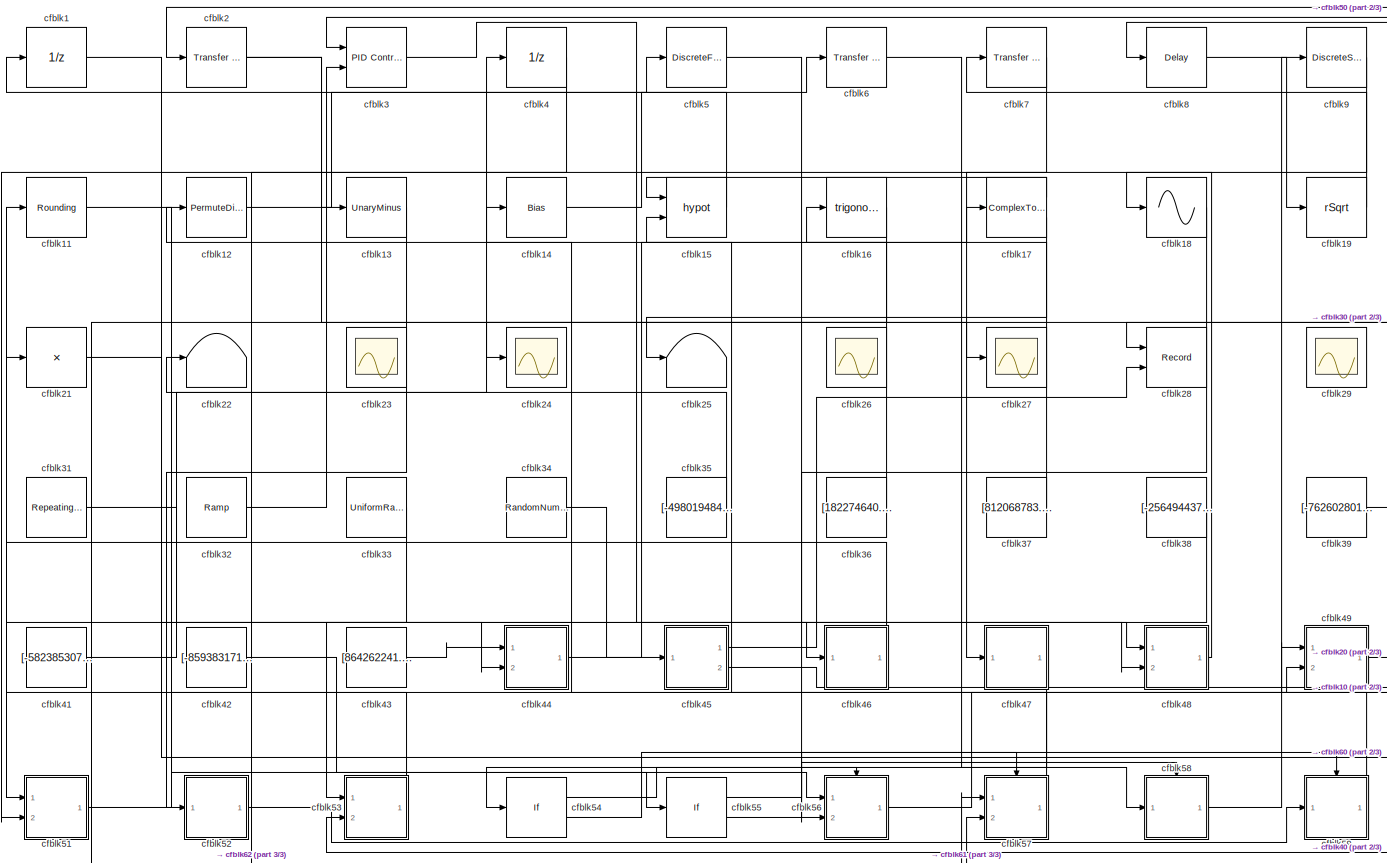
[diagram: root canvas - part 1/3, most of the canvas]
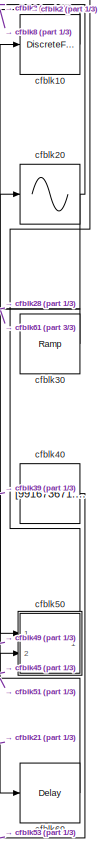
[diagram: root canvas - part 2/3, right side, full height]
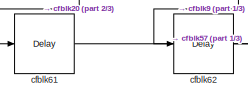
[diagram: root canvas - part 3/3, bottom left region]
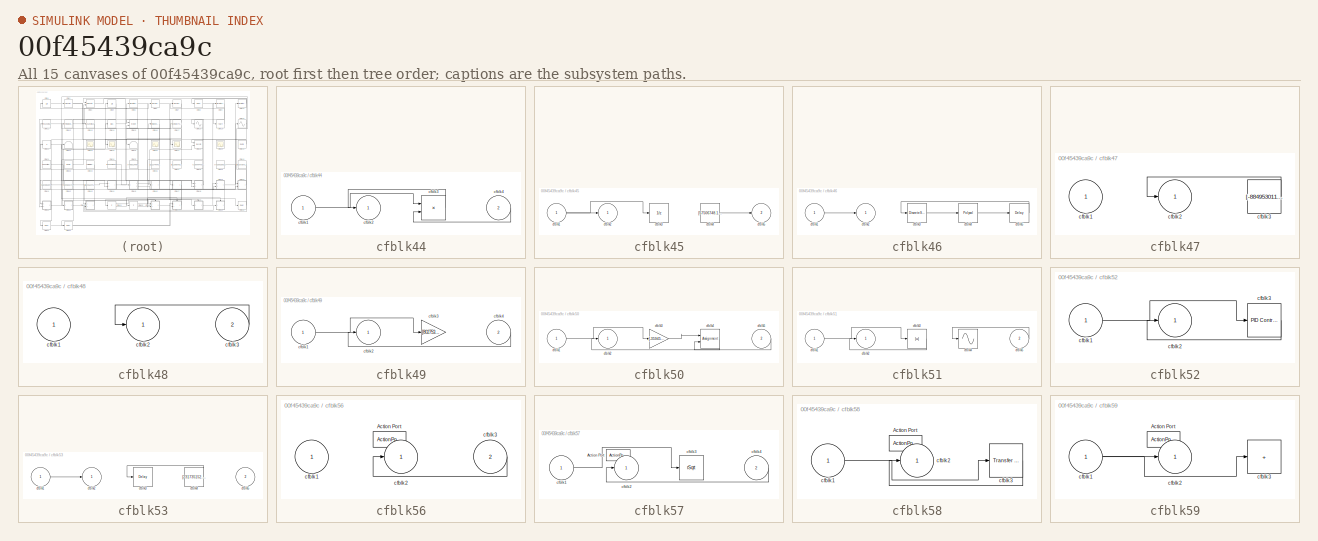
[diagram: thumbnail index - all 15 canvases of the model, root first then tree order]
MODEL slx_00f45439ca9c
KIND model
CONFIG AbsTol = auto
CONFIG EnableMultiTasking = off
CONFIG FixedStep = auto
CONFIG MaxStep = auto
CONFIG MinStep = auto
CONFIG RelTol = 1e-3
CONFIG SampleTimeConstraint = Unconstrained
CONFIG SolverName = VariableStepAuto
CONFIG StartTime = 0.0
CONFIG StopTime = 10.0
BLOCK [UnitDelay] cfblk1
  HasFrameUpgradeWarning = on
BLOCK [DiscreteFilter] cfblk10
  InputPortMap = u0
  Ports = [1, 1]
  SampleTime = 1
BLOCK [Rounding] cfblk11
BLOCK [PermuteDimensions] cfblk12
BLOCK [UnaryMinus] cfblk13
BLOCK [Bias] cfblk14
  Bias = [232730928.681070]
  SaturateOnIntegerOverflow = off
BLOCK [Math] cfblk15
  Operator = hypot
  Ports = [2, 1]
BLOCK [Trigonometry] cfblk16
  Ports = [1, 1]
BLOCK [ComplexToRealImag] cfblk17
  Ports = [1, 2]
BLOCK [Sin] cfblk18
  Ports = [1, 1]
  SampleTime = 0
  TimeSource = Use external signal
BLOCK [Sqrt] cfblk19
  AlgorithmType = Newton-Raphson
  Operator = rSqrt
BLOCK [Reference] cfblk2  REF=simulink/Discrete/Transfer Fcn
First Order
  Ports = [1, 1]
  SourceBlock = simulink/Discrete/Transfer Fcn\nFirst Order
  SourceProductBaseCode = SL
  SourceType = First Order Transfer Fcn
BLOCK [Sin] cfblk20
  Ports = [1, 1]
  SampleTime = 0
  TimeSource = Use external signal
BLOCK [Product] cfblk21
  Inputs = *
  Ports = [1, 1]
BLOCK [Terminator] cfblk22
BLOCK [Scope] cfblk23
  Floating = on
  NumInputPorts = 1
  Ports = []
BLOCK [Scope] cfblk24
  Floating = off
  NumInputPorts = 1
  Ports = [1]
BLOCK [Terminator] cfblk25
BLOCK [Scope] cfblk26
  Floating = on
  NumInputPorts = 1
  Ports = []
BLOCK [Scope] cfblk27
  Floating = off
  NumInputPorts = 1
  Ports = [1]
BLOCK [Record] cfblk28
  CompatibilityTag = XY
  FileSettingsInternal = {"entries":[{"content":{"excelSettings":{"content":{},"type":"Streamout.ExcelSettings"}},"type":"Streamout.FileSettingStorage","uuid":"bc1bea57-7175-457e-a136-c385bfcfe488"}],"packageUris":["http://schema.mathworks.com/mf0/streamout_blocks/R2020a"],"version":"1.0"}
  Layout = [1 1]
  Ports = [2]
  SignalsInternal = {"entries":[{"content":{"signals":[{"content":{"blockPath":["sampleModel193/cfblk28"],"channel":[],"dimensions":[1],"domain":"sampleModel193/cfblk28","lineColor":"#a2142f","plots":[1],"port":1,"sid":[""],"signalID":7218,"signalName":"cfblk30"},"type":"RecordBlkView.Signal","uuid":"5325866a-24c1-4f14-81bb-e80c3d8cfcb1"},{"content":{"blockPath":["sampleModel193/cfblk28"],"channel":[],"dimensions":[1...<+385ch>
  VisualizationBindings = {"xyplotplugin":{"info":[{"series":[{"bindingParametersList":[{"parameter":"X-Axis","signalID":7218,"signalName":"cfblk30"},{"parameter":"Y-Axis","signalID":7222,"signalName":"cfblk45:1"}],"seriesID":58629}],"subplotID":1}]}}
BLOCK [Scope] cfblk29
  Floating = on
  NumInputPorts = 1
  Ports = []
BLOCK [Reference] cfblk3  REF=slpidlib/PID Controller (2DOF)
  Ports = [2, 1]
  SourceBlock = slpidlib/PID Controller (2DOF)
  SourceProductBaseCode = SL
  SourceType = PID 2dof
BLOCK [Reference] cfblk30  REF=simulink/Sources/Ramp
  Ports = [0, 1]
  SourceBlock = simulink/Sources/Ramp
  SourceProductBaseCode = SL
  SourceType = Ramp
BLOCK [Reference] cfblk31  REF=simulink/Sources/Repeating
Sequence
Stair
  Ports = [0, 1]
  SourceBlock = simulink/Sources/Repeating\nSequence\nStair
  SourceProductBaseCode = SL
  SourceType = Repeating Sequence Stair
BLOCK [Reference] cfblk32  REF=simulink/Sources/Ramp
  Ports = [0, 1]
  SourceBlock = simulink/Sources/Ramp
  SourceProductBaseCode = SL
  SourceType = Ramp
BLOCK [UniformRandomNumber] cfblk33
  Maximum = [1760766452.681617]
  Minimum = [-942132288.166952]
  SampleTime = 0.1
  Seed = [86964386.000000]
BLOCK [RandomNumber] cfblk34
  Mean = [43865.707237]
  SampleTime = 0.1
  Seed = [951810309.000000]
  Variance = [65444.635651]
BLOCK [Constant] cfblk35
  SampleTime = 1
  Value = [-498019484.916280]
BLOCK [Constant] cfblk36
  SampleTime = 1
  Value = [182274640.164447]
BLOCK [Constant] cfblk37
  SampleTime = 1
  Value = [812068783.380337]
BLOCK [Constant] cfblk38
  SampleTime = 1
  Value = [-256494437.485965]
BLOCK [Constant] cfblk39
  SampleTime = 1
  Value = [-762602801.261265]
BLOCK [UnitDelay] cfblk4
  HasFrameUpgradeWarning = on
BLOCK [Constant] cfblk40
  SampleTime = 1
  Value = [991673671.101249]
BLOCK [Constant] cfblk41
  SampleTime = 1
  Value = [-582385307.902942]
BLOCK [Constant] cfblk42
  SampleTime = 1
  Value = [-859383171.150196]
BLOCK [Constant] cfblk43
  SampleTime = 1
  Value = [864262241.803764]
BLOCK [SubSystem] cfblk44
  Ports = [2, 1]
  RequestExecContextInheritance = off
BLOCK [Inport] cfblk44/cfblk1
BLOCK [Outport] cfblk44/cfblk2
BLOCK [Product] cfblk44/cfblk3
  Inputs = **
  Ports = [2, 1]
BLOCK [Inport] cfblk44/cfblk4
  Port = 2
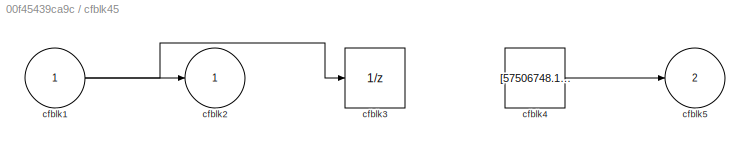
BLOCK [SubSystem] cfblk45
  Ports = [1, 2]
  RequestExecContextInheritance = off
BLOCK [Inport] cfblk45/cfblk1
BLOCK [Outport] cfblk45/cfblk2
BLOCK [UnitDelay] cfblk45/cfblk3
  HasFrameUpgradeWarning = on
BLOCK [Constant] cfblk45/cfblk4
  SampleTime = 1
  Value = [57506748.169329]
BLOCK [Outport] cfblk45/cfblk5
  Port = 2
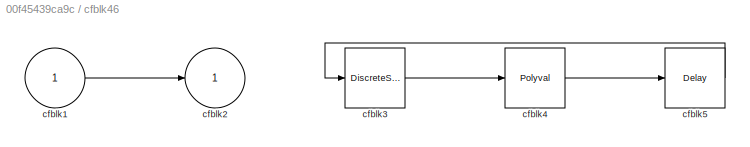
BLOCK [SubSystem] cfblk46
  Ports = [1, 1]
  RequestExecContextInheritance = off
BLOCK [Inport] cfblk46/cfblk1
BLOCK [Outport] cfblk46/cfblk2
BLOCK [DiscreteStateSpace] cfblk46/cfblk3
BLOCK [Polyval] cfblk46/cfblk4
  Coefs = [ +2.081618890e-019, -1.441693666e-014, +4.719686976e-010, -8.536869453e-006, +1.621573104e-001, -8.087801117e+001 ]
BLOCK [Delay] cfblk46/cfblk5
  InputPortMap = u0
  Ports = [1, 1]
  SampleTime = 1
BLOCK [SubSystem] cfblk47
  Ports = [1, 1]
  RequestExecContextInheritance = off
BLOCK [Inport] cfblk47/cfblk1
BLOCK [Outport] cfblk47/cfblk2
BLOCK [Constant] cfblk47/cfblk3
  SampleTime = 1
  Value = [-884953011.251367]
BLOCK [SubSystem] cfblk48
  Ports = [2, 1]
  RequestExecContextInheritance = off
BLOCK [Inport] cfblk48/cfblk1
BLOCK [Outport] cfblk48/cfblk2
BLOCK [Inport] cfblk48/cfblk3
  Port = 2
BLOCK [SubSystem] cfblk49
  Ports = [2, 1]
  RequestExecContextInheritance = off
BLOCK [Inport] cfblk49/cfblk1
BLOCK [Outport] cfblk49/cfblk2
BLOCK [Gain] cfblk49/cfblk3
  Gain = [802753382.521521]
BLOCK [Inport] cfblk49/cfblk4
  Port = 2
BLOCK [DiscreteFilter] cfblk5
  InputPortMap = u0
  Ports = [1, 1]
  SampleTime = 1
BLOCK [SubSystem] cfblk50
  Ports = [2, 1]
  RequestExecContextInheritance = off
BLOCK [Inport] cfblk50/cfblk1
BLOCK [Outport] cfblk50/cfblk2
BLOCK [Gain] cfblk50/cfblk3
  Gain = [-35945150.417610]
BLOCK [Assignment] cfblk50/cfblk4
  DiagnosticForDimensions = Warning
  IndexOptions = Index vector (dialog)
  Indices = 1
  OutputSizes = 1
  Ports = [2, 1]
BLOCK [Inport] cfblk50/cfblk5
  Port = 2
BLOCK [SubSystem] cfblk51
  Ports = [2, 1]
  RequestExecContextInheritance = off
BLOCK [Inport] cfblk51/cfblk1
BLOCK [Outport] cfblk51/cfblk2
BLOCK [Abs] cfblk51/cfblk3
  SaturateOnIntegerOverflow = off
BLOCK [Sin] cfblk51/cfblk4
  Ports = [1, 1]
  SampleTime = 0
  TimeSource = Use external signal
BLOCK [Inport] cfblk51/cfblk5
  Port = 2
BLOCK [SubSystem] cfblk52
  Ports = [1, 1]
  RequestExecContextInheritance = off
BLOCK [Inport] cfblk52/cfblk1
BLOCK [Outport] cfblk52/cfblk2
BLOCK [Reference] cfblk52/cfblk3  REF=slpidlib/PID Controller
  Ports = [1, 1]
  SourceBlock = slpidlib/PID Controller
  SourceProductBaseCode = SL
  SourceType = PID 1dof
BLOCK [SubSystem] cfblk53
  Ports = [2, 1]
  RequestExecContextInheritance = off
BLOCK [Inport] cfblk53/cfblk1
BLOCK [Outport] cfblk53/cfblk2
BLOCK [Delay] cfblk53/cfblk3
  InputPortMap = u0
  Ports = [1, 1]
  SampleTime = 1
BLOCK [Constant] cfblk53/cfblk4
  SampleTime = 1
  Value = [231735152.240399]
BLOCK [Inport] cfblk53/cfblk5
  Port = 2
BLOCK [If] cfblk54
  IfExpression = u1 >= 0
  Ports = [1, 2]
  SampleTime = 1
BLOCK [If] cfblk55
  IfExpression = u1 >= 0
  Ports = [1, 2]
  SampleTime = 1
BLOCK [SubSystem] cfblk56
  Ports = [2, 1, 0, 0, 0, 0, 0, 1]
  RequestExecContextInheritance = off
  TreatAsAtomicUnit = on
BLOCK [ActionPort] cfblk56/Action Port
  ActionPortLabel = if(u1 >= 0)
BLOCK [Inport] cfblk56/cfblk1
BLOCK [Outport] cfblk56/cfblk2
BLOCK [Inport] cfblk56/cfblk3
  Port = 2
BLOCK [SubSystem] cfblk57
  Ports = [2, 1, 0, 0, 0, 0, 0, 1]
  RequestExecContextInheritance = off
  TreatAsAtomicUnit = on
BLOCK [ActionPort] cfblk57/Action Port
  ActionPortLabel = else
BLOCK [Inport] cfblk57/cfblk1
BLOCK [Outport] cfblk57/cfblk2
BLOCK [Sqrt] cfblk57/cfblk3
  AlgorithmType = Newton-Raphson
  Operator = rSqrt
BLOCK [Inport] cfblk57/cfblk4
  Port = 2
BLOCK [SubSystem] cfblk58
  Ports = [1, 1, 0, 0, 0, 0, 0, 1]
  RequestExecContextInheritance = off
  TreatAsAtomicUnit = on
BLOCK [ActionPort] cfblk58/Action Port
  ActionPortLabel = if(u1 >= 0)
BLOCK [Inport] cfblk58/cfblk1
BLOCK [Outport] cfblk58/cfblk2
BLOCK [Reference] cfblk58/cfblk3  REF=simulink/Discrete/Transfer Fcn
Lead or Lag
  Ports = [1, 1]
  SourceBlock = simulink/Discrete/Transfer Fcn\nLead or Lag
  SourceProductBaseCode = SL
  SourceType = Lead or Lag Compensator
BLOCK [SubSystem] cfblk59
  Ports = [1, 1, 0, 0, 0, 0, 0, 1]
  RequestExecContextInheritance = off
  TreatAsAtomicUnit = on
BLOCK [ActionPort] cfblk59/Action Port
  ActionPortLabel = else
BLOCK [Inport] cfblk59/cfblk1
BLOCK [Outport] cfblk59/cfblk2
BLOCK [Sum] cfblk59/cfblk3
  IconShape = rectangular
  Inputs = +
  Ports = [1, 1]
BLOCK [Reference] cfblk6  REF=simulink/Discrete/Transfer Fcn
First Order
  Ports = [1, 1]
  SourceBlock = simulink/Discrete/Transfer Fcn\nFirst Order
  SourceProductBaseCode = SL
  SourceType = First Order Transfer Fcn
BLOCK [Delay] cfblk60
  InputPortMap = u0
  Ports = [1, 1]
  SampleTime = 1
BLOCK [Delay] cfblk61
  InputPortMap = u0
  Ports = [1, 1]
  SampleTime = 1
BLOCK [Delay] cfblk62
  InputPortMap = u0
  Ports = [1, 1]
  SampleTime = 1
BLOCK [Reference] cfblk7  REF=simulink/Discrete/Transfer Fcn
First Order
  Ports = [1, 1]
  SourceBlock = simulink/Discrete/Transfer Fcn\nFirst Order
  SourceProductBaseCode = SL
  SourceType = First Order Transfer Fcn
BLOCK [Delay] cfblk8
  InputPortMap = u0
  Ports = [1, 1]
  SampleTime = 1
BLOCK [DiscreteStateSpace] cfblk9
LINE cfblk10:1 -> cfblk8:1
LINE cfblk11:1 -> cfblk56:1
LINE cfblk12:1 -> cfblk5:1
LINE cfblk13:1 -> cfblk52:1
LINE cfblk14:1 -> cfblk6:1
LINE cfblk15:1 -> cfblk1:1
LINE cfblk16:1 -> cfblk24:1
LINE cfblk17:1 -> cfblk15:1
LINE cfblk17:2 -> cfblk25:1
LINE cfblk18:1 -> cfblk56:2
LINE cfblk19:1 -> cfblk7:1
LINE cfblk1:1 -> cfblk48:2
NET cfblk20:1 -> cfblk3:1, cfblk61:1
LINE cfblk21:1 -> cfblk60:1
NET cfblk2:1 -> cfblk13:1, cfblk27:1
LINE cfblk30:1 -> cfblk28:1
LINE cfblk31:1 -> cfblk44:2
LINE cfblk32:1 -> cfblk3:2
LINE cfblk33:1 -> cfblk51:1
LINE cfblk34:1 -> cfblk45:1
LINE cfblk35:1 -> cfblk22:1
LINE cfblk36:1 -> cfblk16:1
LINE cfblk37:1 -> cfblk12:1
LINE cfblk38:1 -> cfblk53:1
LINE cfblk39:1 -> cfblk50:1
LINE cfblk3:1 -> cfblk46:1
LINE cfblk40:1 -> cfblk53:2
LINE cfblk41:1 -> cfblk4:1
LINE cfblk42:1 -> cfblk55:1
LINE cfblk43:1 -> cfblk44:1
LINE cfblk44/cfblk1:1 -> cfblk44/cfblk3:1
LINE cfblk44/cfblk3:1 -> cfblk44/cfblk2:1
LINE cfblk44/cfblk4:1 -> cfblk44/cfblk3:2
LINE cfblk44:1 -> cfblk17:1
NET cfblk45/cfblk1:1 -> cfblk45/cfblk2:1, cfblk45/cfblk3:1
LINE cfblk45/cfblk4:1 -> cfblk45/cfblk5:1
LINE cfblk45:1 -> cfblk28:2
LINE cfblk45:2 -> cfblk50:2
LINE cfblk46/cfblk1:1 -> cfblk46/cfblk2:1
LINE cfblk46/cfblk3:1 -> cfblk46/cfblk4:1
LINE cfblk46/cfblk4:1 -> cfblk46/cfblk5:1
LINE cfblk46/cfblk5:1 -> cfblk46/cfblk3:1
LINE cfblk46:1 -> cfblk21:1
LINE cfblk47/cfblk3:1 -> cfblk47/cfblk2:1
LINE cfblk47:1 -> cfblk54:1
LINE cfblk48/cfblk3:1 -> cfblk48/cfblk2:1
LINE cfblk48:1 -> cfblk18:1
LINE cfblk49/cfblk1:1 -> cfblk49/cfblk3:1
LINE cfblk49/cfblk4:1 -> cfblk49/cfblk2:1
LINE cfblk49:1 -> cfblk20:1
LINE cfblk4:1 -> cfblk51:2
LINE cfblk50/cfblk1:1 -> cfblk50/cfblk3:1
LINE cfblk50/cfblk3:1 -> cfblk50/cfblk4:1
LINE cfblk50/cfblk4:1 -> cfblk50/cfblk2:1
LINE cfblk50/cfblk5:1 -> cfblk50/cfblk4:2
LINE cfblk50:1 -> cfblk2:1
LINE cfblk51/cfblk1:1 -> cfblk51/cfblk3:1
LINE cfblk51/cfblk3:1 -> cfblk51/cfblk2:1
LINE cfblk51/cfblk5:1 -> cfblk51/cfblk4:1
LINE cfblk51:1 -> cfblk10:1
LINE cfblk52/cfblk1:1 -> cfblk52/cfblk3:1
LINE cfblk52/cfblk3:1 -> cfblk52/cfblk2:1
LINE cfblk52:1 -> cfblk59:1
LINE cfblk53/cfblk1:1 -> cfblk53/cfblk2:1
LINE cfblk53/cfblk4:1 -> cfblk53/cfblk3:1
LINE cfblk53:1 -> cfblk11:1
LINE cfblk54:1 -> cfblk56:ifaction
LINE cfblk54:2 -> cfblk57:ifaction
LINE cfblk55:1 -> cfblk58:ifaction
LINE cfblk55:2 -> cfblk59:ifaction
LINE cfblk56/cfblk3:1 -> cfblk56/cfblk2:1
LINE cfblk56:1 -> cfblk49:2
LINE cfblk57/cfblk1:1 -> cfblk57/cfblk3:1
LINE cfblk57/cfblk4:1 -> cfblk57/cfblk2:1
LINE cfblk57:1 -> cfblk14:1
LINE cfblk58/cfblk1:1 -> cfblk58/cfblk3:1
LINE cfblk58/cfblk3:1 -> cfblk58/cfblk2:1
LINE cfblk58:1 -> cfblk9:1
NET cfblk59/cfblk1:1 -> cfblk59/cfblk2:1, cfblk59/cfblk3:1
LINE cfblk59:1 -> cfblk15:2
LINE cfblk5:1 -> cfblk48:1
LINE cfblk60:1 -> cfblk49:1
LINE cfblk61:1 -> cfblk57:2
LINE cfblk62:1 -> cfblk57:1
LINE cfblk6:1 -> cfblk58:1
LINE cfblk7:1 -> cfblk47:1
LINE cfblk8:1 -> cfblk19:1
LINE cfblk9:1 -> cfblk62:1
note: NET lines group one-source signal fan-out (src -> all destinations, sorted); 1:1 wires keep LINE
